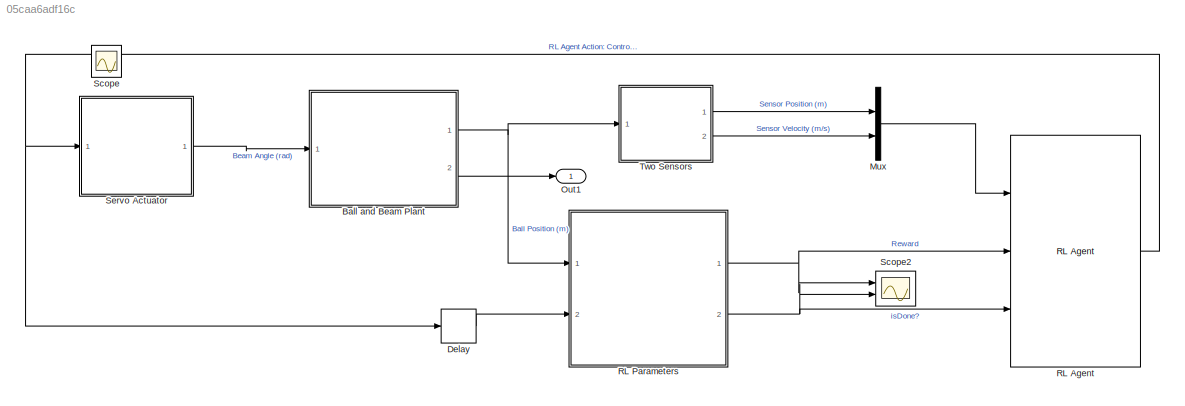
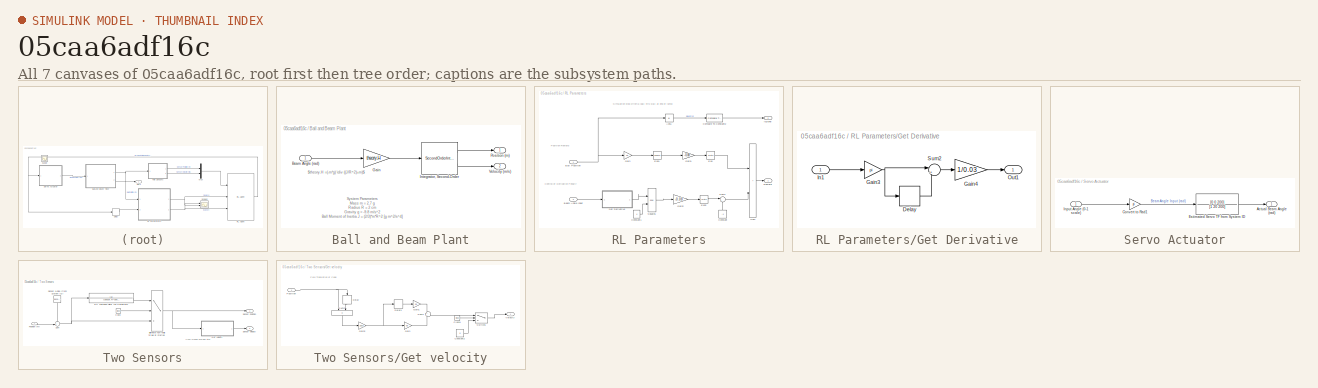
[diagram: thumbnail index - all 7 canvases of the model, root first then tree order]
MODEL slx_05caa6adf16c
KIND model
CONFIG AbsTol = auto
CONFIG EnableMultiTasking = off
CONFIG FixedStep = auto
CONFIG MaxStep = auto
CONFIG MinStep = auto
CONFIG RelTol = 1e-3
CONFIG SampleTimeConstraint = Unconstrained
CONFIG SolverName = VariableStepAuto
CONFIG StartTime = 0.0
CONFIG StopTime = 10.0
BLOCK [SubSystem] Ball and Beam Plant
  NameLocation = top
  Ports = [1, 2]
  RequestExecContextInheritance = off
BLOCK [Inport] Ball and Beam Plant/Beam Angle (rad)
BLOCK [Gain] Ball and Beam Plant/Gain
  Gain = theory.H
BLOCK [SecondOrderIntegrator] Ball and Beam Plant/Integrator, Second-Order 
  ICX = IC
  LimitX = on
  LowerLimitX = -0.28
  Ports = [1, 2]
  UpperLimitX = 0.28
BLOCK [Outport] Ball and Beam Plant/Position (m)
  NameLocation = top
BLOCK [Outport] Ball and Beam Plant/Velocity (m//s)
  Port = 2
BLOCK [Delay] Delay
  DelayLength = 1
  InputPortMap = u0
  Ports = [1, 1]
BLOCK [Mux] Mux
  DisplayOption = bar
  Inputs = 2
  Ports = [2, 1]
BLOCK [Outport] Out1
BLOCK [Reference] RL Agent  REF=rllib/RL Agent
  Ports = [3, 1]
  SourceBlock = rllib/RL Agent
  SourceProductBaseCode = RL
  SourceType = RL Agent
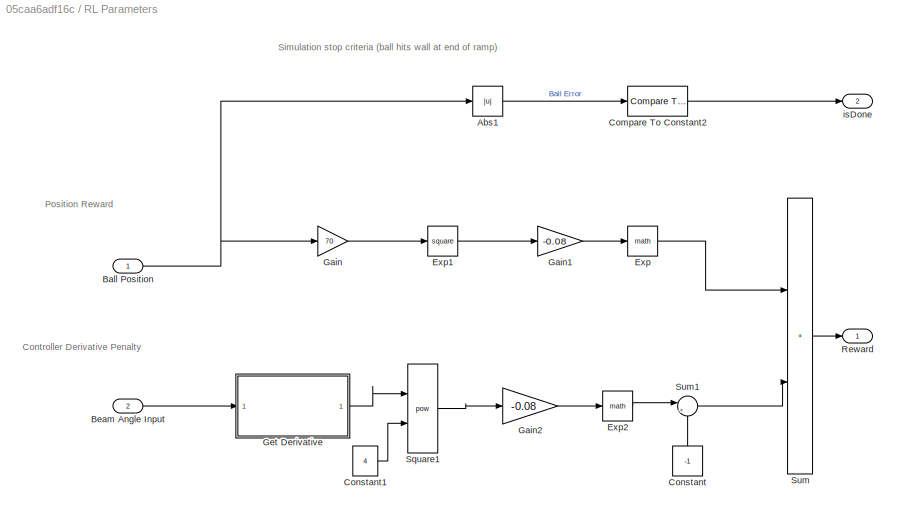
BLOCK [SubSystem] RL Parameters
  Ports = [2, 2]
  RequestExecContextInheritance = off
BLOCK [Abs] RL Parameters/Abs1
  SaturateOnIntegerOverflow = off
BLOCK [Inport] RL Parameters/Ball Position
BLOCK [Inport] RL Parameters/Beam Angle Input
  Port = 2
BLOCK [Reference] RL Parameters/Compare To Constant2  REF=simulink/Logic and Bit
Operations/Compare
To Constant
  Ports = [1, 1]
  SourceBlock = simulink/Logic and Bit\nOperations/Compare\nTo Constant
  SourceProductBaseCode = SL
  SourceType = Compare To Constant
BLOCK [Constant] RL Parameters/Constant
  NameLocation = right
  Value = -1
BLOCK [Constant] RL Parameters/Constant1
  Value = 4
BLOCK [Math] RL Parameters/Exp
  Ports = [1, 1]
BLOCK [Math] RL Parameters/Exp1
  Operator = square
  Ports = [1, 1]
BLOCK [Math] RL Parameters/Exp2
  Ports = [1, 1]
BLOCK [Gain] RL Parameters/Gain
  Gain = 70
BLOCK [Gain] RL Parameters/Gain1
  Gain = -0.08
BLOCK [Gain] RL Parameters/Gain2
  Gain = -0.08
BLOCK [SubSystem] RL Parameters/Get Derivative
  Ports = [1, 1]
  RequestExecContextInheritance = off
BLOCK [Delay] RL Parameters/Get Derivative/Delay
  DelayLength = 1
  InputPortMap = u0
  Ports = [1, 1]
BLOCK [Gain] RL Parameters/Get Derivative/Gain3
  Gain = pi
BLOCK [Gain] RL Parameters/Get Derivative/Gain4
  Gain = 1/0.03
BLOCK [Inport] RL Parameters/Get Derivative/In1
BLOCK [Outport] RL Parameters/Get Derivative/Out1
BLOCK [Sum] RL Parameters/Get Derivative/Sum2
  Inputs = |+-
  Ports = [2, 1]
BLOCK [Outport] RL Parameters/Reward
  NameLocation = top
BLOCK [Math] RL Parameters/Square1
  Operator = pow
  Ports = [2, 1]
BLOCK [Sum] RL Parameters/Sum
  IconShape = rectangular
  Ports = [2, 1]
BLOCK [Sum] RL Parameters/Sum1
  Inputs = |++
  Ports = [2, 1]
BLOCK [Outport] RL Parameters/isDone
  Port = 2
BLOCK [Scope] Scope
  Floating = off
  IOType = viewer
  NumInputPorts = 1
  Ports = []
  ScopeSpecificationString = Simulink.scopes.TimeScopeBlockCfg('CurrentConfiguration', extmgr.ConfigurationSet(extmgr.Configuration('Core','General UI',true,'FigureColor',[1 1 1]),extmgr.Configuration('Core','Source UI',true),extmgr.Configuration('Sources','WiredSimulink',true),extmgr.Configuration('Visuals','Time Domain',true,'SerializedDisplays',{struct('MinYLimReal','-0.34057','MaxYLimReal','0.26634','YLabelReal','','MinYL...<+3382ch>
BLOCK [Scope] Scope2
  Floating = off
  NumInputPorts = 2
  Ports = [2]
  ScopeSpecificationString = Simulink.scopes.TimeScopeBlockCfg('CurrentConfiguration', extmgr.ConfigurationSet(extmgr.Configuration('Core','General UI',true),extmgr.Configuration('Core','Source UI',true),extmgr.Configuration('Sources','WiredSimulink',true,'DataLoggingVariableName','ScopeData2'),extmgr.Configuration('Visuals','Time Domain',true,'SerializedDisplays',{struct('MinYLimReal','-1.25','MaxYLimReal','1.25','YLabelReal...<+1412ch>
BLOCK [SubSystem] Servo Actuator
  NameLocation = top
  Ports = [1, 1]
  RequestExecContextInheritance = off
BLOCK [Outport] Servo Actuator/Actual Beam Angle (rad)
BLOCK [Gain] Servo Actuator/Convert to Rad1
  Gain = pi
BLOCK [TransferFcn] Servo Actuator/Estimated Servo TF from System ID
  Denominator = [1 20 200]
  Numerator = [0 0 200]
BLOCK [Inport] Servo Actuator/Input Angle (0-1 scale)
BLOCK [SubSystem] Two Sensors
  NameLocation = top
  Ports = [1, 2]
  RequestExecContextInheritance = off
BLOCK [Clock] Two Sensors/Clock
BLOCK [Switch] Two Sensors/Eliminate non-realistic lag at startup
  Criteria = u2 > Threshold
  InputSameDT = off
  SaturateOnIntegerOverflow = off
  Threshold = 0.3
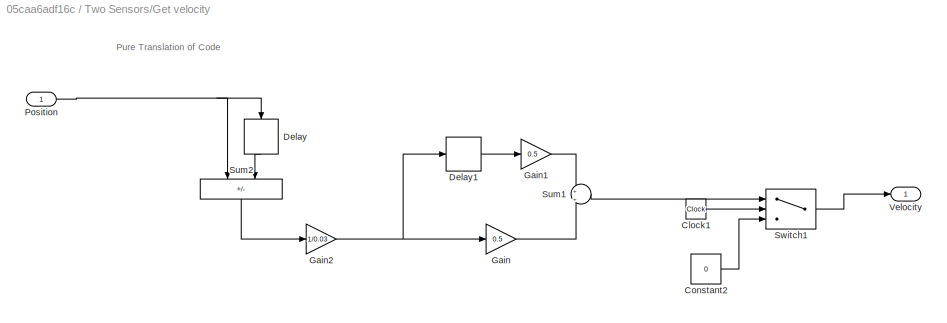
BLOCK [SubSystem] Two Sensors/Get velocity
  NameLocation = top
  Ports = [1, 1]
  RequestExecContextInheritance = off
BLOCK [Clock] Two Sensors/Get velocity/Clock1
BLOCK [Constant] Two Sensors/Get velocity/Constant2
  Value = 0
BLOCK [Delay] Two Sensors/Get velocity/Delay
  DelayLength = 1
  InputPortMap = u0
  NameLocation = left
  Ports = [1, 1]
BLOCK [Delay] Two Sensors/Get velocity/Delay1
  DelayLength = 1
  InputPortMap = u0
  Ports = [1, 1]
  SampleTime = 0.03
BLOCK [Gain] Two Sensors/Get velocity/Gain
  Gain = 0.5
BLOCK [Gain] Two Sensors/Get velocity/Gain1
  Gain = 0.5
BLOCK [Gain] Two Sensors/Get velocity/Gain2
  Gain = 1/0.03
BLOCK [Inport] Two Sensors/Get velocity/Position
BLOCK [Sum] Two Sensors/Get velocity/Sum1
  Inputs = +|+
  Ports = [2, 1]
BLOCK [Sum] Two Sensors/Get velocity/Sum2
  IconShape = rectangular
  Inputs = +-
  NameLocation = left
  Ports = [2, 1]
BLOCK [Switch] Two Sensors/Get velocity/Switch1
  Criteria = u2 > Threshold
  InputSameDT = off
  SaturateOnIntegerOverflow = off
  Threshold = 0.06
BLOCK [Outport] Two Sensors/Get velocity/Velocity
BLOCK [Inport] Two Sensors/Position (m)
  NameLocation = top
BLOCK [TransferFcn] Two Sensors/RC Lowpass Filter (on Hardware)
  Denominator = [sensor.R*sensor.C 1]
  NameLocation = top
BLOCK [Reference] Two Sensors/Sensor Noise (from System ID)  REF=simulink/Sources/Band-Limited
White Noise
  NameLocation = top
  Ports = [0, 1]
  SourceBlock = simulink/Sources/Band-Limited\nWhite Noise
  SourceProductBaseCode = SL
  SourceType = Band-Limited White Noise.
BLOCK [Outport] Two Sensors/Sensor Position
  NameLocation = top
BLOCK [Outport] Two Sensors/Sensor Velocity
  Port = 2
BLOCK [Sum] Two Sensors/Sum
  Inputs = ++|
  Ports = [2, 1]
ANNOTATION Ball and Beam Plant: System Parameters Mass m = 2.7 g Radius R = 2 cm Gravity g = -9.8 m/s^2 Ball Moment of Inertia J = (2/3)* m * R ^2 [g m^2/s^4]
ANNOTATION Ball and Beam Plant: $theory.H =(-m*g) \div ((J/R^2)+m)$
ANNOTATION RL Parameters: Controller Derivative Penalty
ANNOTATION RL Parameters: Position Reward
ANNOTATION RL Parameters: Simulation stop criteria (ball hits wall at end of ramp)
ANNOTATION Two Sensors: Uses moving average filter
ANNOTATION Two Sensors/Get velocity: Pure Translation of Code
LINE Ball and Beam Plant/Beam Angle (rad):1 -> Ball and Beam Plant/Gain:1
LINE Ball and Beam Plant/Gain:1 -> Ball and Beam Plant/Integrator, Second-Order :1
LINE Ball and Beam Plant/Integrator, Second-Order :1 -> Ball and Beam Plant/Position (m):1
LINE Ball and Beam Plant/Integrator, Second-Order :2 -> Ball and Beam Plant/Velocity (m//s):1
NET Ball and Beam Plant:1 -> RL Parameters:1, Two Sensors:1
LINE Ball and Beam Plant:2 -> Out1:1
LINE Delay:1 -> RL Parameters:2
LINE Mux:1 -> RL Agent:1
NET RL Agent:1 -> Delay:1, Servo Actuator:1
LINE RL Parameters/Abs1:1 -> RL Parameters/Compare To Constant2:1
NET RL Parameters/Ball Position:1 -> RL Parameters/Abs1:1, RL Parameters/Gain:1
LINE RL Parameters/Beam Angle Input:1 -> RL Parameters/Get Derivative:1
LINE RL Parameters/Compare To Constant2:1 -> RL Parameters/isDone:1
LINE RL Parameters/Constant1:1 -> RL Parameters/Square1:2
LINE RL Parameters/Constant:1 -> RL Parameters/Sum1:2
LINE RL Parameters/Exp1:1 -> RL Parameters/Gain1:1
LINE RL Parameters/Exp2:1 -> RL Parameters/Sum1:1
LINE RL Parameters/Exp:1 -> RL Parameters/Sum:1
LINE RL Parameters/Gain1:1 -> RL Parameters/Exp:1
LINE RL Parameters/Gain2:1 -> RL Parameters/Exp2:1
LINE RL Parameters/Gain:1 -> RL Parameters/Exp1:1
LINE RL Parameters/Get Derivative/Delay:1 -> RL Parameters/Get Derivative/Sum2:2
NET RL Parameters/Get Derivative/Gain3:1 -> RL Parameters/Get Derivative/Delay:1, RL Parameters/Get Derivative/Sum2:1
LINE RL Parameters/Get Derivative/Gain4:1 -> RL Parameters/Get Derivative/Out1:1
LINE RL Parameters/Get Derivative/In1:1 -> RL Parameters/Get Derivative/Gain3:1
LINE RL Parameters/Get Derivative/Sum2:1 -> RL Parameters/Get Derivative/Gain4:1
LINE RL Parameters/Get Derivative:1 -> RL Parameters/Square1:1
LINE RL Parameters/Square1:1 -> RL Parameters/Gain2:1
LINE RL Parameters/Sum1:1 -> RL Parameters/Sum:2
LINE RL Parameters/Sum:1 -> RL Parameters/Reward:1
NET RL Parameters:1 -> RL Agent:2, Scope2:1
NET RL Parameters:2 -> RL Agent:3, Scope2:2
LINE Servo Actuator/Convert to Rad1:1 -> Servo Actuator/Estimated Servo TF from System ID:1
LINE Servo Actuator/Estimated Servo TF from System ID:1 -> Servo Actuator/Actual Beam Angle (rad):1
LINE Servo Actuator/Input Angle (0-1 scale):1 -> Servo Actuator/Convert to Rad1:1
LINE Servo Actuator:1 -> Ball and Beam Plant:1
LINE Two Sensors/Clock:1 -> Two Sensors/Eliminate non-realistic lag at startup:2
NET Two Sensors/Eliminate non-realistic lag at startup:1 -> Two Sensors/Get velocity:1, Two Sensors/Sensor Position:1
LINE Two Sensors/Get velocity/Clock1:1 -> Two Sensors/Get velocity/Switch1:2
LINE Two Sensors/Get velocity/Constant2:1 -> Two Sensors/Get velocity/Switch1:3
LINE Two Sensors/Get velocity/Delay1:1 -> Two Sensors/Get velocity/Gain1:1
LINE Two Sensors/Get velocity/Delay:1 -> Two Sensors/Get velocity/Sum2:2
LINE Two Sensors/Get velocity/Gain1:1 -> Two Sensors/Get velocity/Sum1:1
NET Two Sensors/Get velocity/Gain2:1 -> Two Sensors/Get velocity/Delay1:1, Two Sensors/Get velocity/Gain:1
LINE Two Sensors/Get velocity/Gain:1 -> Two Sensors/Get velocity/Sum1:2
NET Two Sensors/Get velocity/Position:1 -> Two Sensors/Get velocity/Delay:1, Two Sensors/Get velocity/Sum2:1
LINE Two Sensors/Get velocity/Sum1:1 -> Two Sensors/Get velocity/Switch1:1
LINE Two Sensors/Get velocity/Sum2:1 -> Two Sensors/Get velocity/Gain2:1
LINE Two Sensors/Get velocity/Switch1:1 -> Two Sensors/Get velocity/Velocity:1
LINE Two Sensors/Get velocity:1 -> Two Sensors/Sensor Velocity:1
LINE Two Sensors/Position (m):1 -> Two Sensors/Sum:2
LINE Two Sensors/RC Lowpass Filter (on Hardware):1 -> Two Sensors/Eliminate non-realistic lag at startup:1
LINE Two Sensors/Sensor Noise (from System ID):1 -> Two Sensors/Sum:1
NET Two Sensors/Sum:1 -> Two Sensors/Eliminate non-realistic lag at startup:3, Two Sensors/RC Lowpass Filter (on Hardware):1
LINE Two Sensors:1 -> Mux:1
LINE Two Sensors:2 -> Mux:2
note: NET lines group one-source signal fan-out (src -> all destinations, sorted); 1:1 wires keep LINE
